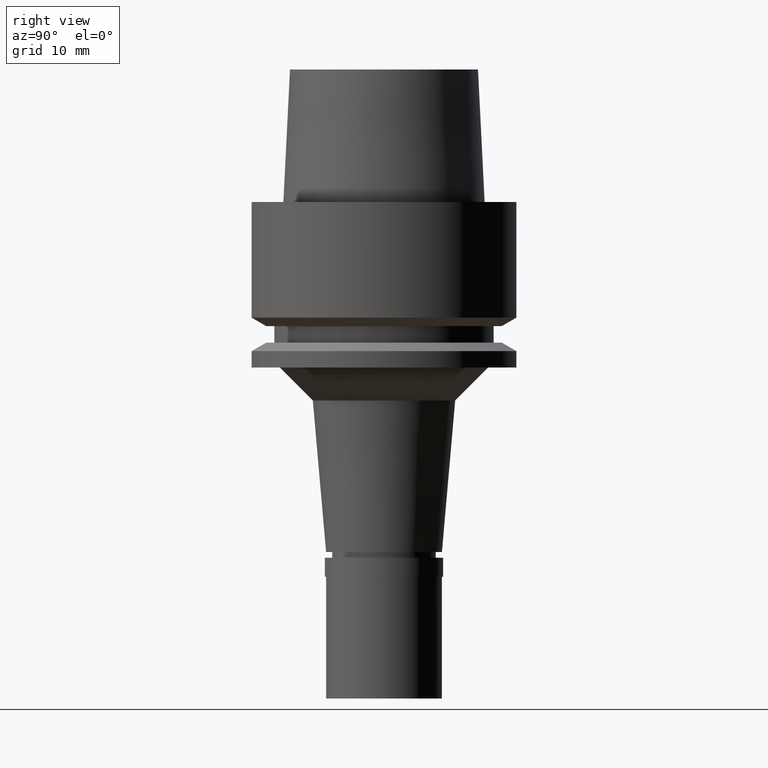
[diagram: clean part render]
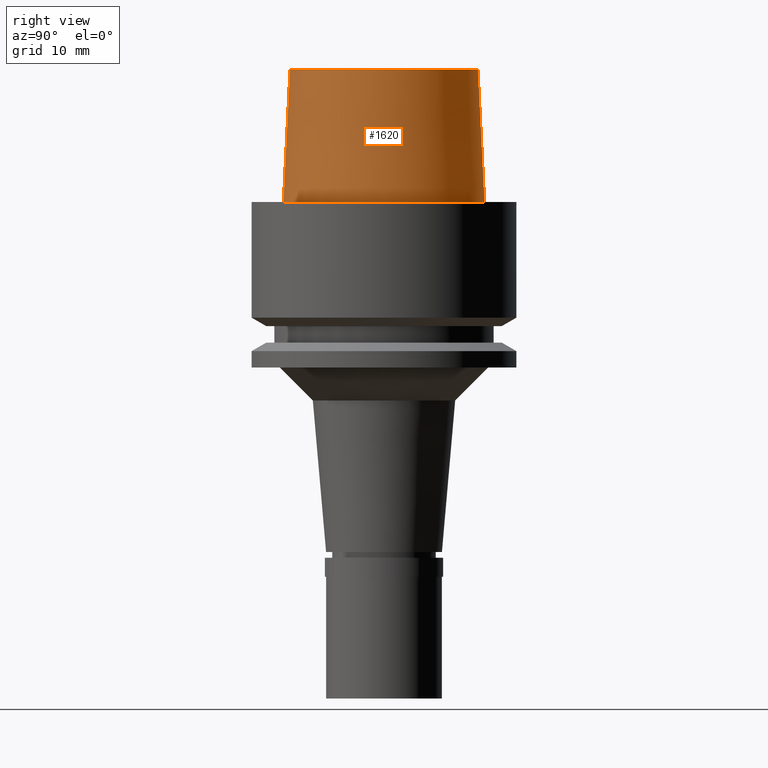
[diagram: same view with one face highlighted and labeled with its STEP entity id]
A machine part, right view. The second image highlights one B-rep face of the part: STEP entity #1620.
In plain terms, the highlighted conical surface has half-angle 2.862 deg.
Its self-contained STEP definition (entity closure, byte-faithful):
#10 = CARTESIAN_POINT ( 'NONE',  ( 0.0000000000000000000, 12.15999970738999991, 3.907985046680999726E-14 ) ) ;
#21 = CARTESIAN_POINT ( 'NONE',  ( 0.0000000000000000000, 0.0000000000000000000, 16.00000000000000000 ) ) ;
#24 = AXIS2_PLACEMENT_3D ( 'NONE', #82, #652, #2301 ) ;
#56 = ORIENTED_EDGE ( 'NONE', *, *, #1777, .F. ) ;
#82 = CARTESIAN_POINT ( 'NONE',  ( 0.0000000000000000000, 0.0000000000000000000, 1.989519660127999812E-13 ) ) ;
#100 = CARTESIAN_POINT ( 'NONE',  ( 0.0000000000000000000, -12.15999970738999991, 1.989519660127999812E-13 ) ) ;
#167 = CARTESIAN_POINT ( 'NONE',  ( 0.0000000000000000000, 11.36000117044000035, 16.00000000000000000 ) ) ;
#189 = ORIENTED_EDGE ( 'NONE', *, *, #278, .T. ) ;
#219 = CARTESIAN_POINT ( 'NONE',  ( 0.0000000000000000000, 0.0000000000000000000, 8.000000000000000000 ) ) ;
#270 = AXIS2_PLACEMENT_3D ( 'NONE', #219, #2530, #1078 ) ;
#278 = EDGE_CURVE ( 'NONE', #2660, #1908, #2367, .T. ) ;
#332 = CARTESIAN_POINT ( 'NONE',  ( 0.0000000000000000000, -11.36000117044000035, 16.00000000000000000 ) ) ;
#393 = CARTESIAN_POINT ( 'NONE',  ( 0.0000000000000000000, -11.36000117044000035, 16.00000000000000000 ) ) ;
#420 = VECTOR ( 'NONE', #1696, 999.9999999999998863 ) ;
#519 = DIRECTION ( 'NONE',  ( 0.0000000000000000000, -0.04993752584492938684, -0.9987523434327887362 ) ) ;
#652 = DIRECTION ( 'NONE',  ( 0.0000000000000000000, 0.0000000000000000000, 1.000000000000000000 ) ) ;
#753 = ORIENTED_EDGE ( 'NONE', *, *, #2183, .T. ) ;
#811 = VERTEX_POINT ( 'NONE', #167 ) ;
#829 = LINE ( 'NONE', #1678, #420 ) ;
#831 = VECTOR ( 'NONE', #519, 999.9999999999998863 ) ;
#957 = EDGE_CURVE ( 'NONE', #811, #2660, #1371, .T. ) ;
#1078 = DIRECTION ( 'NONE',  ( 0.0000000000000000000, -1.000000000000000000, 0.0000000000000000000 ) ) ;
#1255 = DIRECTION ( 'NONE',  ( 0.0000000000000000000, 0.0000000000000000000, -1.000000000000000000 ) ) ;
#1268 = ORIENTED_EDGE ( 'NONE', *, *, #957, .T. ) ;
#1339 = CIRCLE ( 'NONE', #24, 12.15999970738999991 ) ;
#1371 = CIRCLE ( 'NONE', #2030, 11.36000117044999946 ) ;
#1374 = CONICAL_SURFACE ( 'NONE', #270, 11.76000043892000058, 0.04995830450907576964 ) ;
#1496 = EDGE_LOOP ( 'NONE', ( #1268, #189, #753, #56 ) ) ;
#1620 = ADVANCED_FACE ( 'NONE', ( #2110 ), #1374, .T. ) ;
#1678 = CARTESIAN_POINT ( 'NONE',  ( 0.0000000000000000000, 11.36000117044000035, 16.00000000000000000 ) ) ;
#1696 = DIRECTION ( 'NONE',  ( 0.0000000000000000000, 0.04993752584492938684, -0.9987523434327887362 ) ) ;
#1777 = EDGE_CURVE ( 'NONE', #811, #2103, #829, .T. ) ;
#1908 = VERTEX_POINT ( 'NONE', #100 ) ;
#2030 = AXIS2_PLACEMENT_3D ( 'NONE', #21, #1255, #2084 ) ;
#2084 = DIRECTION ( 'NONE',  ( 0.0000000000000000000, 1.000000000000000000, 0.0000000000000000000 ) ) ;
#2103 = VERTEX_POINT ( 'NONE', #10 ) ;
#2110 = FACE_OUTER_BOUND ( 'NONE', #1496, .T. ) ;
#2183 = EDGE_CURVE ( 'NONE', #1908, #2103, #1339, .T. ) ;
#2301 = DIRECTION ( 'NONE',  ( 0.0000000000000000000, -1.000000000000000000, 0.0000000000000000000 ) ) ;
#2367 = LINE ( 'NONE', #332, #831 ) ;
#2530 = DIRECTION ( 'NONE',  ( 0.0000000000000000000, 0.0000000000000000000, -1.000000000000000000 ) ) ;
#2660 = VERTEX_POINT ( 'NONE', #393 ) ;